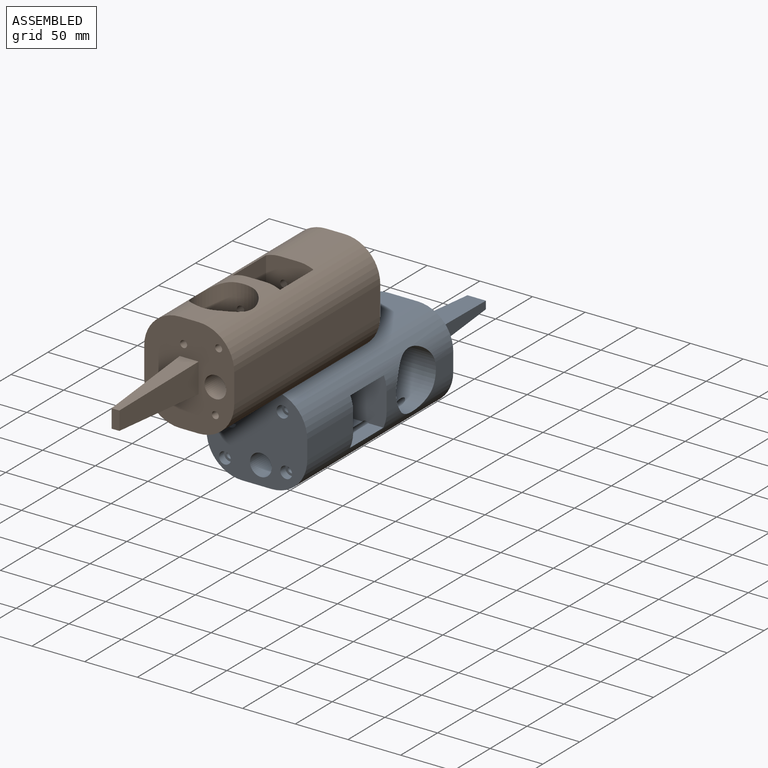
[diagram: assembled view]
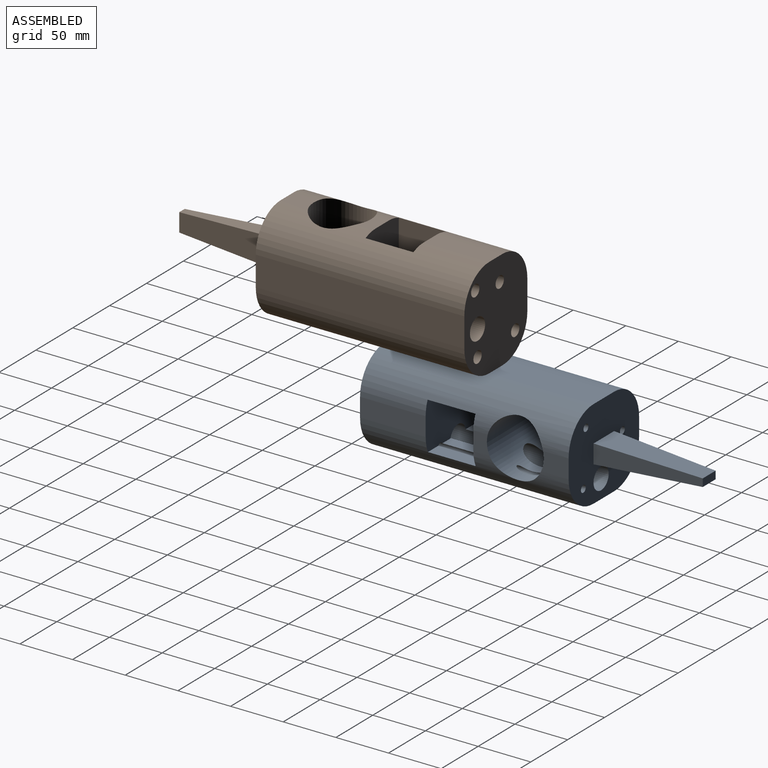
[diagram: assembled view, second angle]
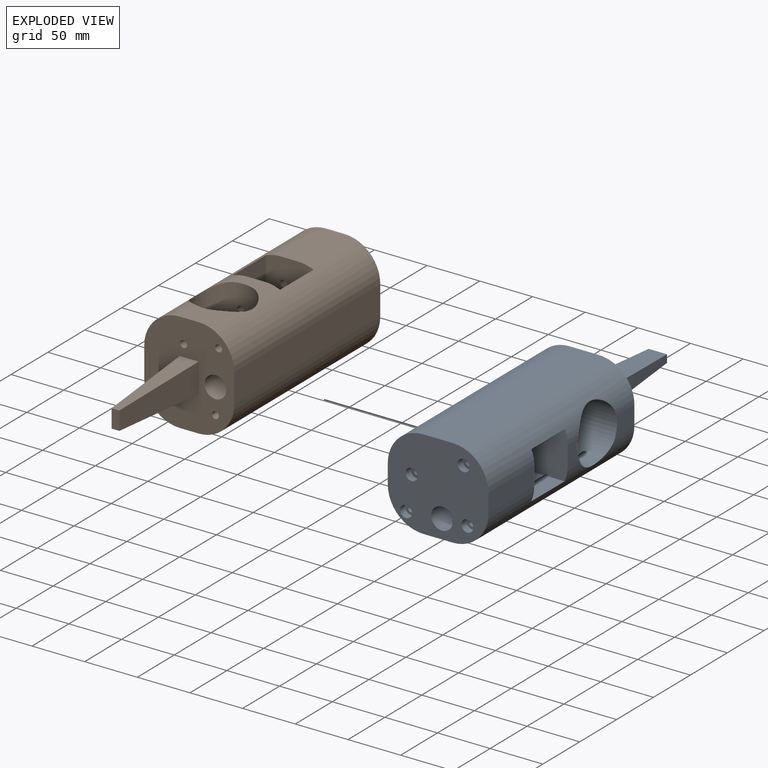
[diagram: exploded view]
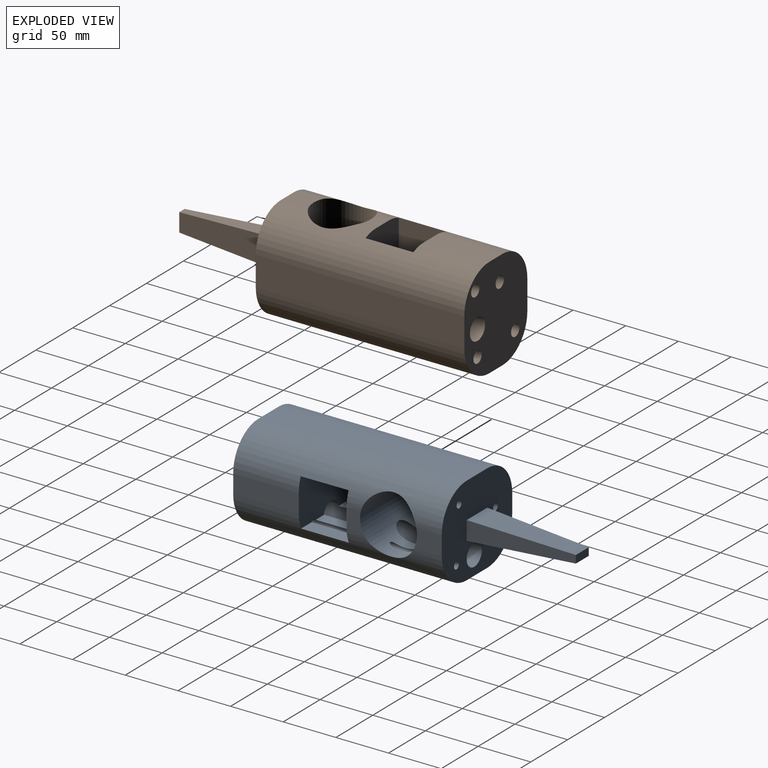
[diagram: exploded view, second angle]
ASSEMBLY  parts=2 mates=2
PART A: 41 faces, bbox 95.6x298x85.5 mm
  f0: plane 45.37x38.31mm, normal (0,0,1), area 1737.7mm2, adj f27,f29,f32,f40
  f1: plane 62.28x17.86mm, normal (1,0,0), area 1112.6mm2, adj f11,f27,f33,f34
  f2: plane 17.86x15.28mm, normal (1,0,0), area 238.9mm2, adj f24,f29,f33,f34
  f3: plane 62.28x17.86mm, normal (-1,0,0), area 1112.6mm2, adj f11,f27,f31,f32
  f4: plane 17.86x15.28mm, normal (-1,0,0), area 238.9mm2, adj f24,f29,f31,f32
  f5: plane 26.08x17.86mm, normal (-1,0,0), area 431.7mm2, adj f10,f24,f31,f32
  f6: plane 26.08x17.86mm, normal (1,0,0), area 431.7mm2, adj f10,f24,f33,f34
  f7: cylinder r=3.3mm len=24.24mm, axis (0,-1,0), area 493.3mm2, adj f10,f24
  f8: plane 198x27.95mm, normal (0,0,1), area 5534.6mm2, adj f10,f11,f31,f34
  f9: plane 198x27.95mm, normal (0,0,-1), area 5534.6mm2, adj f10,f11,f32,f33
  f10: plane 95.55x85.46mm, normal (0,1,0), area 6216.6mm2, adj f5,f6,f7,f8,f9,f15,f18,f21
  f11: plane 95.55x85.46mm, normal (0,-1,0), area 6455.2mm2, adj f1,f3,f8,f9,f14,f17,f20,f23
  f12: cylinder r=3.3mm len=55.28mm, axis (0,-1,0), area 1146.2mm2, adj f13,f27
  f13: plane 11.25x11.25mm, normal (0,-1,0), area 65.2mm2, adj f12,f14
  f14: cylinder r=5.62mm len=11.25mm, axis (0,-1,0), area 247.4mm2, adj f11,f13
  f15: cylinder r=3.3mm len=191mm, axis (0,-1,0), area 3489.3mm2, adj f10,f16,f24
  f16: plane 11.25x11.25mm, normal (0,-1,0), area 65.2mm2, adj f15,f17
  f17: cylinder r=5.62mm len=11.25mm, axis (0,-1,0), area 247.4mm2, adj f11,f16
  f18: cylinder r=3.3mm len=191mm, axis (0,-1,0), area 3478.3mm2, adj f10,f19,f24,f25,f27,f28,f29
  f19: plane 11.25x11.25mm, normal (0,-1,0), area 65.2mm2, adj f18,f20
  f20: cylinder r=5.62mm len=11.25mm, axis (0,-1,0), area 247.4mm2, adj f11,f19
  f21: cylinder r=3.3mm len=191mm, axis (0,-1,0), area 3960.3mm2, adj f10,f22
  f22: plane 11.25x11.25mm, normal (0,-1,0), area 65.2mm2, adj f21,f23
  f23: cylinder r=5.62mm len=11.25mm, axis (0,-1,0), area 247.4mm2, adj f11,f22
  f24: cylinder r=27.03mm len=95.55mm, axis (1,0,0), area 14247.9mm2, adj f2,f4,f5,f6,f7,f15,f18,f30
  f25: plane 45.37x14.21mm, normal (0,0,1), area 644.8mm2, adj f18,f27,f29,f33
  f26: plane 90.21x45.37mm, normal (0,0,-1), area 4092.4mm2, adj f27,f29,f31,f34
  f27: plane 95.55x45.05mm, normal (0,1,0), area 4085.5mm2, adj f0,f1,f3,f12,f18,f25,f26,f28
  f28: plane 45.37x11.24mm, normal (0,0,1), area 510mm2, adj f18,f27,f29,f40
  f29: plane 95.55x45.05mm, normal (0,-1,0), area 4085.5mm2, adj f0,f2,f4,f18,f25,f26,f28,f30
  f30: cylinder r=3.3mm len=13.45mm, axis (0,-1,0), area 269.6mm2, adj f24,f29
  f31: cylinder r=33.8mm len=198mm, axis (0,1,0), area 9053.2mm2, adj f3,f4,f5,f8,f10,f11,f24,f26
  f32: cylinder r=33.8mm len=198mm, axis (0,-1,0), area 9292.3mm2, adj f0,f3,f4,f5,f9,f10,f11,f24
  f33: cylinder r=33.8mm len=198mm, axis (0,1,0), area 9292.3mm2, adj f1,f2,f6,f9,f10,f11,f24,f25
  f34: cylinder r=33.8mm len=198mm, axis (0,-1,0), area 9053.2mm2, adj f1,f2,f6,f8,f10,f11,f24,f26
  f35: plane 100x27.95mm, normal (0,0.05,-1), area 2274.3mm2, adj f10,f36,f38,f39
  f36: plane 100x17.86mm, normal (-1,0.05,0), area 1264.1mm2, adj f10,f35,f37,f39
  f37: plane 100x27.95mm, normal (0,0.05,1), area 2274.3mm2, adj f10,f36,f38,f39
  f38: plane 100x17.86mm, normal (1,0.05,0), area 1264.1mm2, adj f10,f35,f37,f39
  f39: plane 17.47x7.38mm, normal (0,1,0), area 129mm2, adj f35,f36,f37,f38
  f40: cylinder r=10.29mm len=198mm, axis (0,1,0), area 10455.1mm2, adj f0,f10,f11,f24,f27,f28,f29
PART B: same geometry as A
PLACE A t=(-62.14,-170.62,-129.69)mm
PLACE B rot(axis=(0.71,0,-0.71),180deg) t=(-47.08,-71.62,-29.17)mm
MATE planar B.f9 <-> A.f1  axis (1,0,0) through (-19.3,-170.62,-24.23)mm
MATE planar A.f8 <-> B.f1  axis (0,0,1) through (-67.08,-71.62,-72.01)mm
